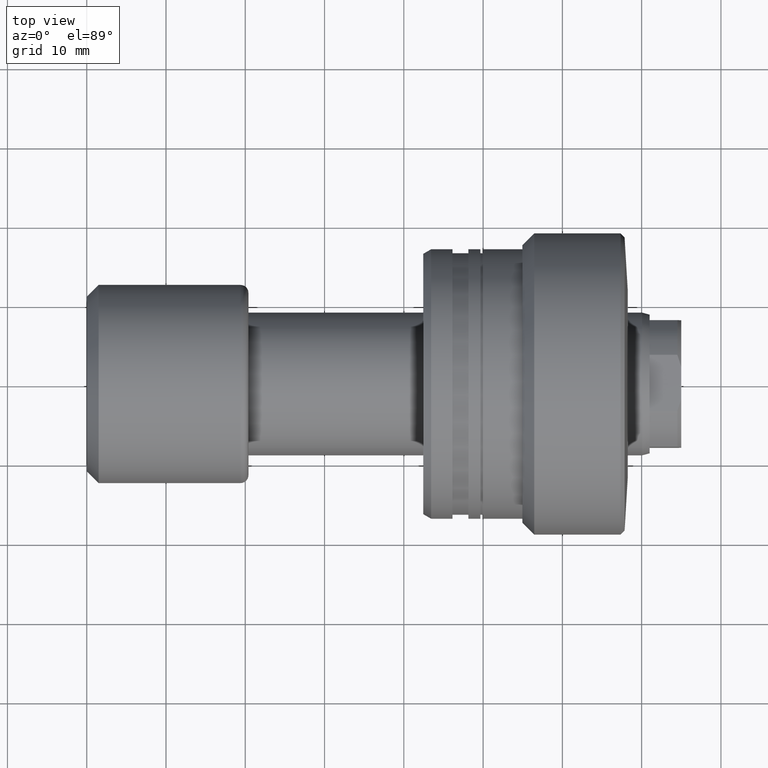
[diagram: clean part render]
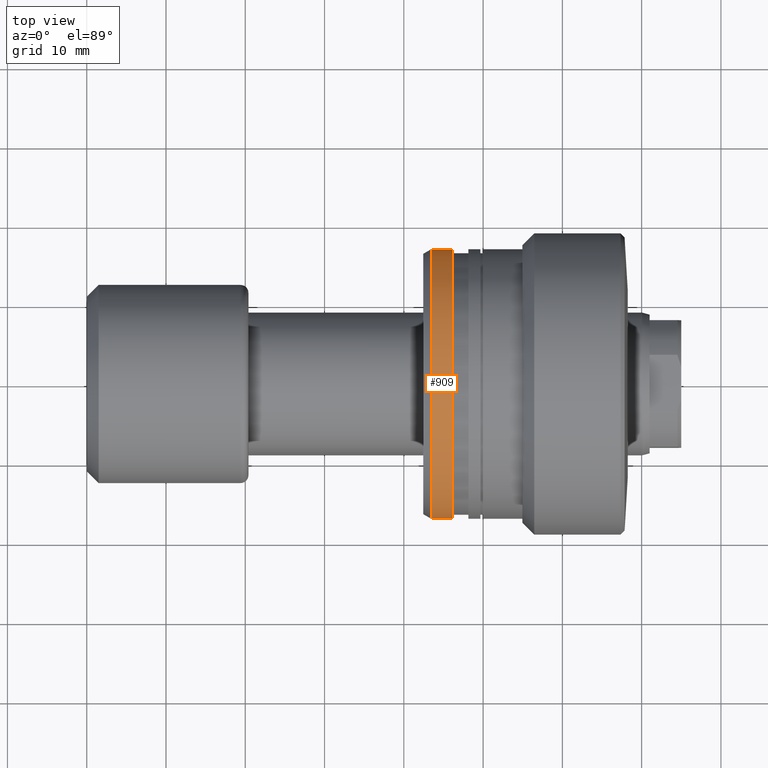
[diagram: same view with one face highlighted and labeled with its STEP entity id]
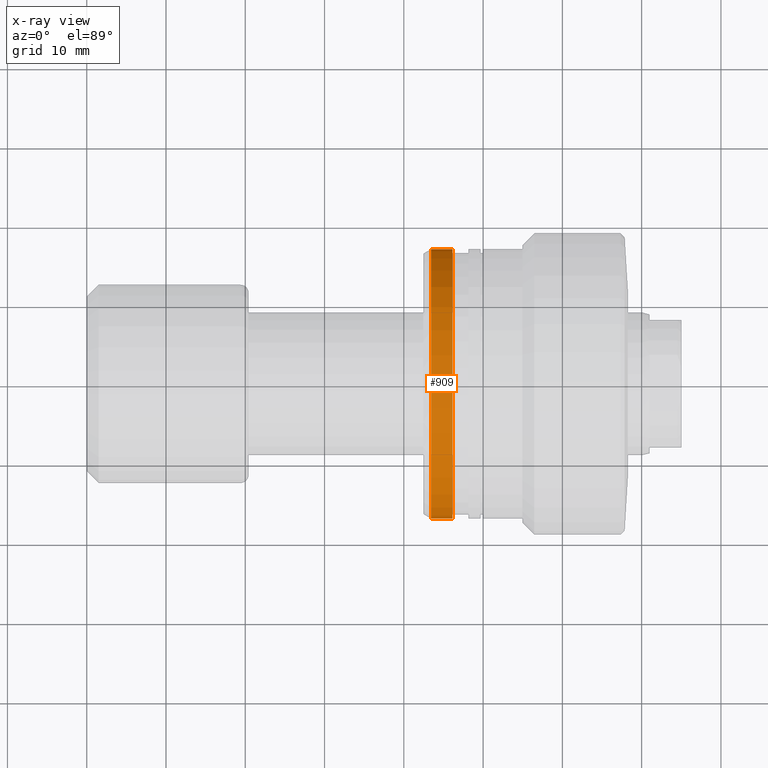
[diagram: x-ray of the same camera — body ghosted, the highlighted face saturated]
A machine part, top view. The second image highlights one B-rep face of the part: STEP entity #909.
The next image is the same camera in x-ray: the body ghosted, the highlighted face saturated — about 0% of this face is hidden behind the body in this view.
In plain terms, the highlighted cylindrical surface (partial cylindrical patch) has radius 17 mm, axis along (-1, 0, 0).
Its self-contained STEP definition (entity closure, byte-faithful):
#44 = LINE ( 'NONE', #2223, #2060 ) ;
#59 = DIRECTION ( 'NONE',  ( -1.000000000000000000, 9.810081908519753690E-16, -0.000000000000000000 ) ) ;
#85 = EDGE_CURVE ( 'NONE', #2114, #971, #756, .T. ) ;
#93 = EDGE_CURVE ( 'NONE', #2199, #279, #1383, .T. ) ;
#273 = CYLINDRICAL_SURFACE ( 'NONE', #683, 16.99999999999999645 ) ;
#279 = VERTEX_POINT ( 'NONE', #2420 ) ;
#353 = AXIS2_PLACEMENT_3D ( 'NONE', #1360, #1395, #2152 ) ;
#371 = EDGE_CURVE ( 'NONE', #279, #971, #2096, .T. ) ;
#587 = DIRECTION ( 'NONE',  ( -1.000000000000000000, 9.810081908519753690E-16, -0.000000000000000000 ) ) ;
#683 = AXIS2_PLACEMENT_3D ( 'NONE', #1789, #2120, #1533 ) ;
#756 = CIRCLE ( 'NONE', #1946, 17.00000000000000000 ) ;
#796 = DIRECTION ( 'NONE',  ( -1.020425574104004196E-15, -1.000000000000000000, 0.000000000000000000 ) ) ;
#853 = ORIENTED_EDGE ( 'NONE', *, *, #371, .T. ) ;
#909 = ADVANCED_FACE ( 'NONE', ( #1380 ), #273, .T. ) ;
#971 = VERTEX_POINT ( 'NONE', #1184 ) ;
#982 = VECTOR ( 'NONE', #587, 1000.000000000000000 ) ;
#1040 = CARTESIAN_POINT ( 'NONE',  ( -25.50000000000017764, -17.00000000000000355, 2.081899558550500674E-15 ) ) ;
#1042 = ORIENTED_EDGE ( 'NONE', *, *, #85, .F. ) ;
#1184 = CARTESIAN_POINT ( 'NONE',  ( -25.50000000000014566, 16.99999999999999289, 0.000000000000000000 ) ) ;
#1225 = ORIENTED_EDGE ( 'NONE', *, *, #93, .T. ) ;
#1360 = CARTESIAN_POINT ( 'NONE',  ( -22.80878161770236190, -7.329348763220012769E-15, 0.000000000000000000 ) ) ;
#1380 = FACE_OUTER_BOUND ( 'NONE', #1504, .T. ) ;
#1383 = CIRCLE ( 'NONE', #353, 16.99999999999999289 ) ;
#1395 = DIRECTION ( 'NONE',  ( -1.000000000000000000, 9.810081908519753690E-16, -0.000000000000000000 ) ) ;
#1504 = EDGE_LOOP ( 'NONE', ( #1225, #853, #1042, #1940 ) ) ;
#1525 = CARTESIAN_POINT ( 'NONE',  ( -22.80878161770237966, -17.00000000000000000, 0.000000000000000000 ) ) ;
#1533 = DIRECTION ( 'NONE',  ( -1.020425574104004394E-15, -1.000000000000000000, 0.000000000000000000 ) ) ;
#1728 = CARTESIAN_POINT ( 'NONE',  ( -30.28002276692730632, 16.99999999999999645, 2.081899558550499885E-15 ) ) ;
#1741 = CARTESIAN_POINT ( 'NONE',  ( -25.50000000000015987, -4.689241486814468610E-15, 0.000000000000000000 ) ) ;
#1789 = CARTESIAN_POINT ( 'NONE',  ( -30.28002276692732408, 0.000000000000000000, 0.000000000000000000 ) ) ;
#1891 = DIRECTION ( 'NONE',  ( -1.000000000000000000, 9.810081908519753690E-16, -0.000000000000000000 ) ) ;
#1940 = ORIENTED_EDGE ( 'NONE', *, *, #2196, .F. ) ;
#1946 = AXIS2_PLACEMENT_3D ( 'NONE', #1741, #59, #796 ) ;
#2060 = VECTOR ( 'NONE', #1891, 1000.000000000000000 ) ;
#2096 = LINE ( 'NONE', #1728, #982 ) ;
#2114 = VERTEX_POINT ( 'NONE', #1040 ) ;
#2120 = DIRECTION ( 'NONE',  ( -1.000000000000000000, 9.810081908519753690E-16, -0.000000000000000000 ) ) ;
#2152 = DIRECTION ( 'NONE',  ( -1.020425574104004591E-15, -1.000000000000000000, 0.000000000000000000 ) ) ;
#2196 = EDGE_CURVE ( 'NONE', #2199, #2114, #44, .T. ) ;
#2199 = VERTEX_POINT ( 'NONE', #1525 ) ;
#2223 = CARTESIAN_POINT ( 'NONE',  ( -30.28002276692734185, -16.99999999999999645, 0.000000000000000000 ) ) ;
#2420 = CARTESIAN_POINT ( 'NONE',  ( -22.80878161770234414, 16.99999999999998579, 2.081899558550499885E-15 ) ) ;